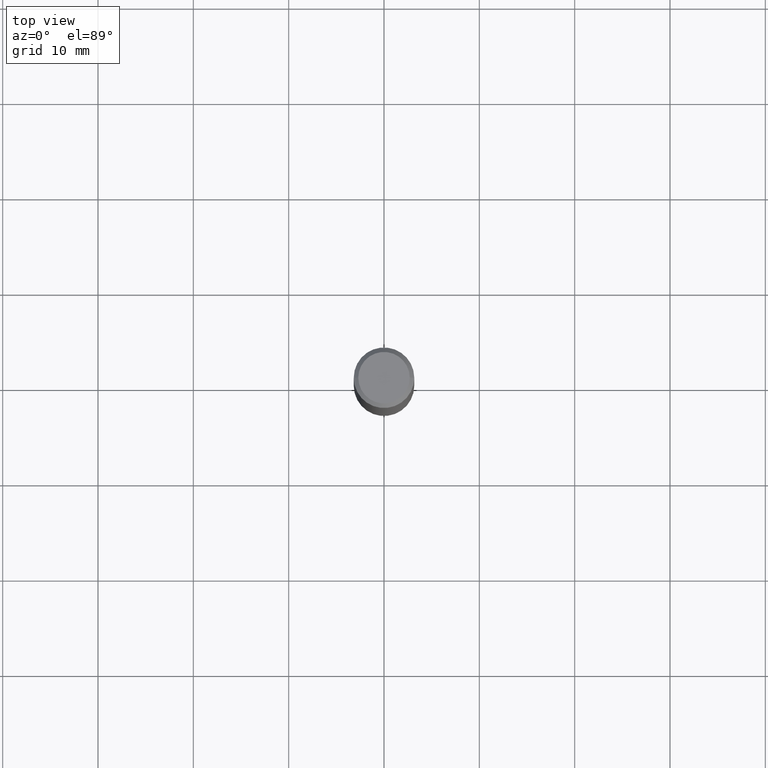
[diagram: clean part render]
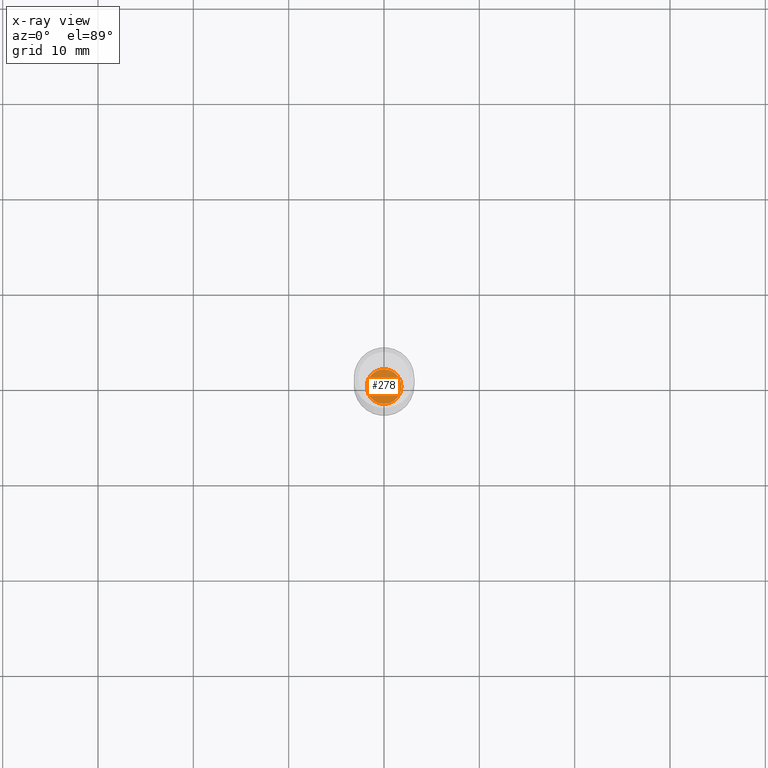
[diagram: x-ray — body ghosted, one internal face saturated and labeled with its STEP entity id]
A machine part, top view, then the same camera in x-ray: the body is ghosted and one INTERNAL B-rep face — a face not visible from any outside direction — is saturated and labeled: STEP entity #278.
In plain terms, the highlighted planar face has unit normal (-0, 0, 1).
Its self-contained STEP definition (entity closure, byte-faithful):
#13 = ORIENTED_EDGE ( 'NONE', *, *, #169, .F. ) ;
#14 = DIRECTION ( 'NONE',  ( 1.000000000000000000, -6.982962677686265922E-15, 4.876176775795935793E-29 ) ) ;
#27 = CARTESIAN_POINT ( 'NONE',  ( 5.243085120460933877E-29, -7.485735990479705492E-15, -2.144000000000000572 ) ) ;
#52 = CARTESIAN_POINT ( 'NONE',  ( -0.07149999999999999412, -6.975048707237121813E-15, -2.144000000000000572 ) ) ;
#57 = VERTEX_POINT ( 'NONE', #330 ) ;
#92 = ORIENTED_EDGE ( 'NONE', *, *, #465, .F. ) ;
#108 = AXIS2_PLACEMENT_3D ( 'NONE', #27, #202, #467 ) ;
#169 = EDGE_CURVE ( 'NONE', #57, #395, #223, .T. ) ;
#202 = DIRECTION ( 'NONE',  ( -2.445468806185136597E-29, 3.491481338843145583E-15, 1.000000000000000000 ) ) ;
#223 = CIRCLE ( 'NONE', #476, 0.07149999999999999412 ) ;
#227 = CARTESIAN_POINT ( 'NONE',  ( 5.243085120460933877E-29, -7.485735990479705492E-15, -2.144000000000000572 ) ) ;
#272 = PLANE ( 'NONE',  #423 ) ;
#278 = ADVANCED_FACE ( 'NONE', ( #424 ), #272, .F. ) ;
#302 = DIRECTION ( 'NONE',  ( 1.000000000000000000, -6.982962677686273021E-15, 0.000000000000000000 ) ) ;
#330 = CARTESIAN_POINT ( 'NONE',  ( 0.07149999999999999412, -7.985017821934272868E-15, -2.144000000000000572 ) ) ;
#345 = DIRECTION ( 'NONE',  ( -2.445468806185136597E-29, 3.491481338843145583E-15, 1.000000000000000000 ) ) ;
#395 = VERTEX_POINT ( 'NONE', #52 ) ;
#409 = CARTESIAN_POINT ( 'NONE',  ( 5.243085120460933877E-29, -7.485735990479705492E-15, -2.144000000000000572 ) ) ;
#423 = AXIS2_PLACEMENT_3D ( 'NONE', #227, #458, #14 ) ;
#424 = FACE_OUTER_BOUND ( 'NONE', #435, .T. ) ;
#435 = EDGE_LOOP ( 'NONE', ( #13, #92 ) ) ;
#458 = DIRECTION ( 'NONE',  ( -2.438088387897960049E-29, 3.491481338843145188E-15, 1.000000000000000000 ) ) ;
#465 = EDGE_CURVE ( 'NONE', #395, #57, #470, .T. ) ;
#467 = DIRECTION ( 'NONE',  ( 1.000000000000000000, -6.982962677686273021E-15, 0.000000000000000000 ) ) ;
#470 = CIRCLE ( 'NONE', #108, 0.07149999999999999412 ) ;
#476 = AXIS2_PLACEMENT_3D ( 'NONE', #409, #345, #302 ) ;